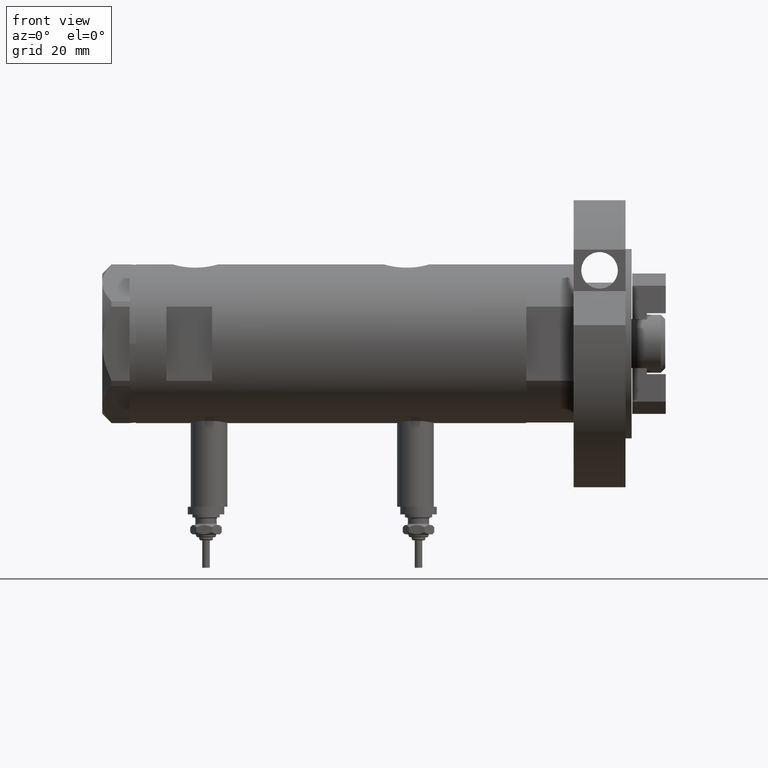
[diagram: clean part render]
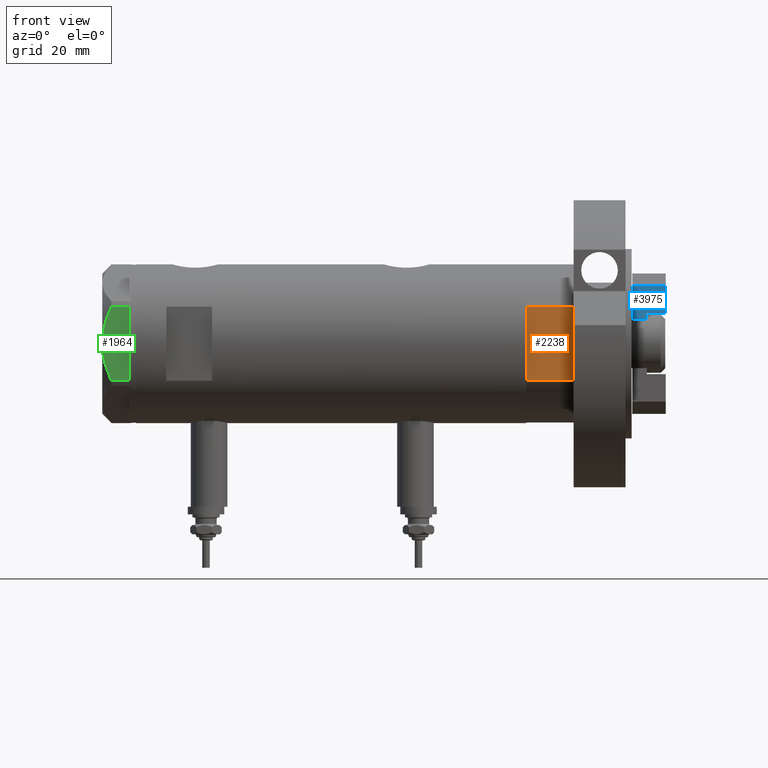
[diagram: same view with three faces highlighted in distinct colors, each labeled with its STEP entity id]
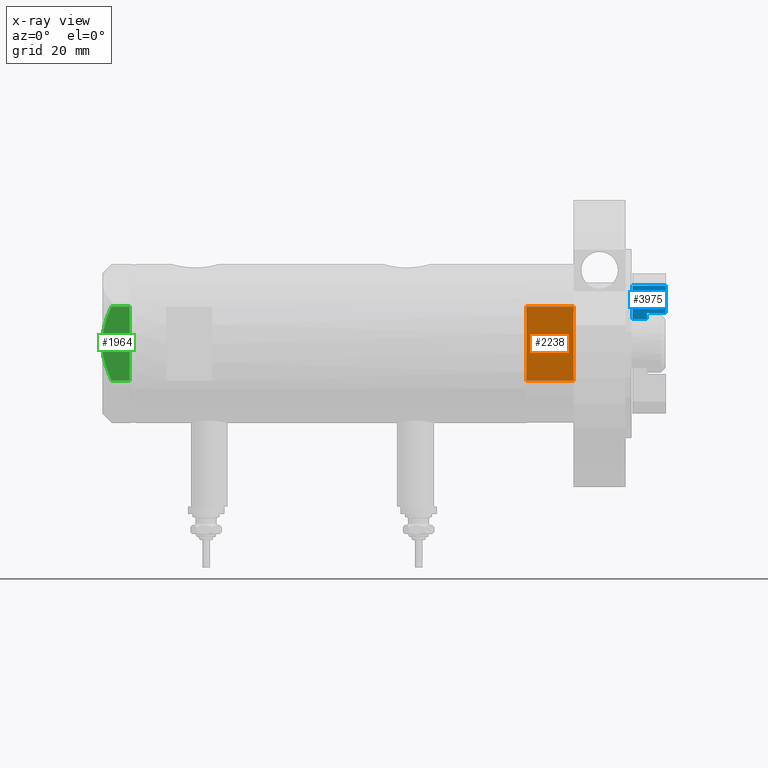
[diagram: x-ray of the same camera — body ghosted, the three highlighted faces saturated]
A machine part, front view with three faces highlighted in distinct colors.
The next image is the same camera in x-ray (body ghosted, the three faces saturated) — at least one of them is partly hidden behind the body in this view.
Their STEP definitions:

[orange] entity #2238 — the highlighted planar face has unit normal (-0, 1, 0).
#587 = VERTEX_POINT ( 'NONE', #5665 ) ;
#858 = AXIS2_PLACEMENT_3D ( 'NONE', #8174, #8258, #1419 ) ;
#1039 = VERTEX_POINT ( 'NONE', #3409 ) ;
#1092 = DIRECTION ( 'NONE',  ( -1.000000000000000000, -0.000000000000000000, -0.000000000000000000 ) ) ;
#1174 = ORIENTED_EDGE ( 'NONE', *, *, #4796, .T. ) ;
#1419 = DIRECTION ( 'NONE',  ( 0.000000000000000000, -0.000000000000000000, 1.000000000000000000 ) ) ;
#1583 = DIRECTION ( 'NONE',  ( -0.000000000000000000, -0.000000000000000000, 1.000000000000000000 ) ) ;
#1719 = LINE ( 'NONE', #2296, #2570 ) ;
#1886 = DIRECTION ( 'NONE',  ( -0.000000000000000000, -0.000000000000000000, 1.000000000000000000 ) ) ;
#2238 = ADVANCED_FACE ( 'NONE', ( #5504 ), #5412, .F. ) ;
#2296 = CARTESIAN_POINT ( 'NONE',  ( -12.12435565298215145, -22.99999999999999645, 15.50000000000000000 ) ) ;
#2570 = VECTOR ( 'NONE', #1092, 1000.000000000000000 ) ;
#2708 = EDGE_CURVE ( 'NONE', #2710, #1039, #2896, .T. ) ;
#2710 = VERTEX_POINT ( 'NONE', #2849 ) ;
#2752 = LINE ( 'NONE', #5282, #5413 ) ;
#2849 = CARTESIAN_POINT ( 'NONE',  ( -12.12435565298215501, -22.99999999999999645, 0.000000000000000000 ) ) ;
#2896 = LINE ( 'NONE', #4896, #8065 ) ;
#3364 = ORIENTED_EDGE ( 'NONE', *, *, #5466, .F. ) ;
#3396 = VERTEX_POINT ( 'NONE', #4261 ) ;
#3409 = CARTESIAN_POINT ( 'NONE',  ( -12.12435565298215323, -22.99999999999999645, 15.50000000000000000 ) ) ;
#3536 = CARTESIAN_POINT ( 'NONE',  ( -12.12435565298215145, -22.99999999999999645, 0.000000000000000000 ) ) ;
#3791 = EDGE_CURVE ( 'NONE', #3396, #587, #2752, .T. ) ;
#4177 = LINE ( 'NONE', #3536, #8499 ) ;
#4261 = CARTESIAN_POINT ( 'NONE',  ( 12.12435565298215323, -22.99999999999999645, 0.000000000000000000 ) ) ;
#4365 = ORIENTED_EDGE ( 'NONE', *, *, #3791, .T. ) ;
#4796 = EDGE_CURVE ( 'NONE', #587, #1039, #1719, .T. ) ;
#4896 = CARTESIAN_POINT ( 'NONE',  ( -12.12435565298215145, -22.99999999999999645, 0.000000000000000000 ) ) ;
#5107 = EDGE_LOOP ( 'NONE', ( #1174, #6735, #3364, #4365 ) ) ;
#5282 = CARTESIAN_POINT ( 'NONE',  ( 12.12435565298215323, -22.99999999999999645, 0.000000000000000000 ) ) ;
#5412 = PLANE ( 'NONE',  #858 ) ;
#5413 = VECTOR ( 'NONE', #1886, 1000.000000000000000 ) ;
#5466 = EDGE_CURVE ( 'NONE', #3396, #2710, #4177, .T. ) ;
#5504 = FACE_OUTER_BOUND ( 'NONE', #5107, .T. ) ;
#5665 = CARTESIAN_POINT ( 'NONE',  ( 12.12435565298215323, -22.99999999999999645, 15.50000000000000000 ) ) ;
#6735 = ORIENTED_EDGE ( 'NONE', *, *, #2708, .F. ) ;
#6863 = DIRECTION ( 'NONE',  ( -1.000000000000000000, -0.000000000000000000, -0.000000000000000000 ) ) ;
#8065 = VECTOR ( 'NONE', #1583, 1000.000000000000000 ) ;
#8174 = CARTESIAN_POINT ( 'NONE',  ( -12.12435565298215145, -22.99999999999999645, 0.000000000000000000 ) ) ;
#8258 = DIRECTION ( 'NONE',  ( -0.000000000000000000, 1.000000000000000000, 0.000000000000000000 ) ) ;
#8499 = VECTOR ( 'NONE', #6863, 1000.000000000000000 ) ;

[blue] entity #3975 — the highlighted planar face has unit normal (0, 1, -0).
#370 = CARTESIAN_POINT ( 'NONE',  ( 7.500000000000000000, -10.49999999999999822, 4.799999999999998934 ) ) ;
#426 = CARTESIAN_POINT ( 'NONE',  ( -3.500000000000002220, -10.49999999999999822, 11.00000000000000000 ) ) ;
#558 = EDGE_CURVE ( 'NONE', #4802, #2989, #2936, .T. ) ;
#567 = LINE ( 'NONE', #7279, #899 ) ;
#687 = CARTESIAN_POINT ( 'NONE',  ( -3.500000000000002220, -10.49999999999999822, 11.00000000000000000 ) ) ;
#716 = DIRECTION ( 'NONE',  ( -0.000000000000000000, -0.000000000000000000, -1.000000000000000000 ) ) ;
#732 = CARTESIAN_POINT ( 'NONE',  ( 5.499999999999999112, -10.49999999999999822, 11.00000000000000000 ) ) ;
#775 = DIRECTION ( 'NONE',  ( 1.000000000000000000, 0.000000000000000000, 0.000000000000000000 ) ) ;
#871 = VERTEX_POINT ( 'NONE', #1297 ) ;
#899 = VECTOR ( 'NONE', #3898, 1000.000000000000000 ) ;
#1297 = CARTESIAN_POINT ( 'NONE',  ( -3.500000000000002220, -10.49999999999999822, 0.000000000000000000 ) ) ;
#1347 = DIRECTION ( 'NONE',  ( -1.398970545142586541E-16, 0.000000000000000000, 1.000000000000000000 ) ) ;
#1389 = DIRECTION ( 'NONE',  ( 0.000000000000000000, 0.000000000000000000, -1.000000000000000000 ) ) ;
#1566 = PLANE ( 'NONE',  #5101 ) ;
#1636 = VERTEX_POINT ( 'NONE', #426 ) ;
#1660 = EDGE_CURVE ( 'NONE', #1636, #871, #8103, .T. ) ;
#1981 = CARTESIAN_POINT ( 'NONE',  ( 5.500000000000000000, -10.49999999999999822, 4.799999999999998934 ) ) ;
#2383 = DIRECTION ( 'NONE',  ( -1.000000000000000000, 0.000000000000000000, 0.000000000000000000 ) ) ;
#2864 = VECTOR ( 'NONE', #716, 1000.000000000000000 ) ;
#2936 = LINE ( 'NONE', #7729, #2950 ) ;
#2950 = VECTOR ( 'NONE', #2383, 1000.000000000000000 ) ;
#2989 = VERTEX_POINT ( 'NONE', #1981 ) ;
#3037 = ORIENTED_EDGE ( 'NONE', *, *, #4600, .T. ) ;
#3175 = EDGE_CURVE ( 'NONE', #2989, #6396, #8068, .T. ) ;
#3263 = CARTESIAN_POINT ( 'NONE',  ( 5.499999999999999112, -10.49999999999999822, 11.00000000000000178 ) ) ;
#3646 = CARTESIAN_POINT ( 'NONE',  ( -7.499999999999999112, -10.49999999999999822, 11.00000000000000000 ) ) ;
#3898 = DIRECTION ( 'NONE',  ( 1.000000000000000000, 0.000000000000000000, 0.000000000000000000 ) ) ;
#3899 = EDGE_LOOP ( 'NONE', ( #5108, #4328, #7133, #5834, #4848, #3037 ) ) ;
#3952 = VECTOR ( 'NONE', #1347, 1000.000000000000000 ) ;
#3975 = ADVANCED_FACE ( 'NONE', ( #4921 ), #1566, .F. ) ;
#4328 = ORIENTED_EDGE ( 'NONE', *, *, #558, .T. ) ;
#4600 = EDGE_CURVE ( 'NONE', #871, #5914, #6925, .T. ) ;
#4802 = VERTEX_POINT ( 'NONE', #370 ) ;
#4825 = CARTESIAN_POINT ( 'NONE',  ( -7.499999999999999112, -10.49999999999999822, 0.000000000000000000 ) ) ;
#4848 = ORIENTED_EDGE ( 'NONE', *, *, #1660, .T. ) ;
#4921 = FACE_OUTER_BOUND ( 'NONE', #3899, .T. ) ;
#5101 = AXIS2_PLACEMENT_3D ( 'NONE', #3646, #5271, #7119 ) ;
#5108 = ORIENTED_EDGE ( 'NONE', *, *, #6161, .F. ) ;
#5271 = DIRECTION ( 'NONE',  ( 0.000000000000000000, 1.000000000000000000, 0.000000000000000000 ) ) ;
#5621 = LINE ( 'NONE', #7440, #2864 ) ;
#5834 = ORIENTED_EDGE ( 'NONE', *, *, #6226, .F. ) ;
#5914 = VERTEX_POINT ( 'NONE', #7861 ) ;
#6161 = EDGE_CURVE ( 'NONE', #4802, #5914, #5621, .T. ) ;
#6226 = EDGE_CURVE ( 'NONE', #1636, #6396, #567, .T. ) ;
#6381 = VECTOR ( 'NONE', #1389, 1000.000000000000000 ) ;
#6396 = VERTEX_POINT ( 'NONE', #732 ) ;
#6925 = LINE ( 'NONE', #4825, #7791 ) ;
#7119 = DIRECTION ( 'NONE',  ( 0.000000000000000000, -0.000000000000000000, 1.000000000000000000 ) ) ;
#7133 = ORIENTED_EDGE ( 'NONE', *, *, #3175, .T. ) ;
#7279 = CARTESIAN_POINT ( 'NONE',  ( -7.499999999999999112, -10.49999999999999822, 11.00000000000000000 ) ) ;
#7440 = CARTESIAN_POINT ( 'NONE',  ( 7.500000000000000000, -10.49999999999999822, 11.00000000000000000 ) ) ;
#7729 = CARTESIAN_POINT ( 'NONE',  ( -7.499999999999999112, -10.49999999999999822, 4.799999999999998934 ) ) ;
#7791 = VECTOR ( 'NONE', #775, 1000.000000000000000 ) ;
#7861 = CARTESIAN_POINT ( 'NONE',  ( 7.500000000000000000, -10.49999999999999822, 0.000000000000000000 ) ) ;
#8068 = LINE ( 'NONE', #3263, #3952 ) ;
#8103 = LINE ( 'NONE', #687, #6381 ) ;

[green] entity #1964 — the highlighted planar face has unit normal (-0, 1, -0).
#145 = DIRECTION ( 'NONE',  ( 3.527173405730720141E-15, -1.000000000000000000, 0.000000000000000000 ) ) ;
#455 = B_SPLINE_CURVE_WITH_KNOTS ( 'NONE', 3,
 ( #2428, #2304, #5799, #5126, #1095, #6487, #4951, #7644, #6319, #5666 ),
 .UNSPECIFIED., .F., .F.,
 ( 4, 2, 2, 2, 4 ),
 ( 0.03516523594057416324, 0.03831677594541234300, 0.03989254594783143981, 0.04146831595025052969, 0.04777139595992690307 ),
 .UNSPECIFIED. ) ;
#498 = CARTESIAN_POINT ( 'NONE',  ( -22.99999999999999289, 12.15905619136133176, 0.000000000000000000 ) ) ;
#1061 = DIRECTION ( 'NONE',  ( -3.527173405730720141E-15, 1.000000000000000000, 0.000000000000000000 ) ) ;
#1095 = CARTESIAN_POINT ( 'NONE',  ( -22.99999999999998224, 8.246028007352361300, 7.571131808646907935 ) ) ;
#1110 = CARTESIAN_POINT ( 'NONE',  ( -22.99999999999999645, 13.27905619136132032, 0.000000000000000000 ) ) ;
#1132 = ORIENTED_EDGE ( 'NONE', *, *, #5045, .T. ) ;
#1169 = VECTOR ( 'NONE', #4336, 1000.000000000000000 ) ;
#1220 = CARTESIAN_POINT ( 'NONE',  ( -23.00000000000004619, -8.112498833180673323E-14, 9.000000000000000000 ) ) ;
#1532 = VERTEX_POINT ( 'NONE', #3937 ) ;
#1571 = VERTEX_POINT ( 'NONE', #4123 ) ;
#1575 = VECTOR ( 'NONE', #145, 1000.000000000000000 ) ;
#1688 = VERTEX_POINT ( 'NONE', #3344 ) ;
#1727 = ORIENTED_EDGE ( 'NONE', *, *, #2506, .F. ) ;
#1744 = LINE ( 'NONE', #3747, #1169 ) ;
#1804 = CARTESIAN_POINT ( 'NONE',  ( -22.99999999999993250, -4.203926054641964782, 8.641681223122507305 ) ) ;
#1830 = LINE ( 'NONE', #1110, #4981 ) ;
#1893 = CARTESIAN_POINT ( 'NONE',  ( -22.99999999999991118, -10.22738952213794761, 6.832470313674783746 ) ) ;
#1901 = LINE ( 'NONE', #4580, #8131 ) ;
#1964 = ADVANCED_FACE ( 'NONE', ( #3118 ), #5844, .F. ) ;
#2196 = CARTESIAN_POINT ( 'NONE',  ( -22.99999999999999645, 13.27905619136132032, 0.000000000000000000 ) ) ;
#2281 = VERTEX_POINT ( 'NONE', #7520 ) ;
#2304 = CARTESIAN_POINT ( 'NONE',  ( -22.99999999999998934, 11.20825071633916359, 6.428173306378450746 ) ) ;
#2428 = CARTESIAN_POINT ( 'NONE',  ( -22.99999999999999289, 12.15905619136133176, 5.983800287807616414 ) ) ;
#2456 = CARTESIAN_POINT ( 'NONE',  ( -22.99999999999992184, -7.253003311474388148, 7.903276810347638737 ) ) ;
#2506 = EDGE_CURVE ( 'NONE', #1571, #7673, #455, .T. ) ;
#2546 = CARTESIAN_POINT ( 'NONE',  ( -22.99999999999995026, -1.063773509315737442, 8.981438083606830602 ) ) ;
#2727 = CARTESIAN_POINT ( 'NONE',  ( -22.99999999999999289, 12.15905619136133176, 9.000000000000000000 ) ) ;
#2971 = CARTESIAN_POINT ( 'NONE',  ( -22.99999999999992895, -5.228918809624124364, 8.433337033849854336 ) ) ;
#3118 = FACE_OUTER_BOUND ( 'NONE', #8314, .T. ) ;
#3281 = EDGE_CURVE ( 'NONE', #1532, #1688, #6811, .T. ) ;
#3344 = CARTESIAN_POINT ( 'NONE',  ( -22.99999999999990763, -12.12435565298232021, 0.000000000000000000 ) ) ;
#3747 = CARTESIAN_POINT ( 'NONE',  ( -22.99999999999990763, -12.15905619136147386, 9.000000000000000000 ) ) ;
#3904 = DIRECTION ( 'NONE',  ( 3.527173405730720141E-15, -1.000000000000000000, 0.000000000000000000 ) ) ;
#3937 = CARTESIAN_POINT ( 'NONE',  ( -22.99999999999999289, 12.12435565298215856, 0.000000000000000000 ) ) ;
#4075 = B_SPLINE_CURVE_WITH_KNOTS ( 'NONE', 3,
 ( #1220, #8390, #2546, #5242, #7182, #1804, #2971, #2456, #6963, #7935, #1893, #4992, #4571, #5160 ),
 .UNSPECIFIED., .F., .F.,
 ( 4, 2, 2, 2, 2, 2, 4 ),
 ( 0.04777139595992690307, 0.04934380568070229761, 0.05091621540147769215, 0.05406103484302848122, 0.05720585428457927030, 0.05877826400535466483, 0.06035067372613005937 ),
 .UNSPECIFIED. ) ;
#4123 = CARTESIAN_POINT ( 'NONE',  ( -22.99999999999999289, 12.15905619136133176, 5.983800287807616414 ) ) ;
#4336 = DIRECTION ( 'NONE',  ( 0.000000000000000000, 0.000000000000000000, 1.000000000000000000 ) ) ;
#4362 = DIRECTION ( 'NONE',  ( 1.000000000000000000, 3.527173405730720141E-15, -0.000000000000000000 ) ) ;
#4571 = CARTESIAN_POINT ( 'NONE',  ( -22.99999999999990763, -11.68282849742335827, 6.206372352695425754 ) ) ;
#4580 = CARTESIAN_POINT ( 'NONE',  ( -22.99999999999999645, 13.27905619136132032, 0.000000000000000000 ) ) ;
#4951 = CARTESIAN_POINT ( 'NONE',  ( -22.99999999999997158, 6.734330413511419700, 8.039389741252668031 ) ) ;
#4981 = VECTOR ( 'NONE', #6557, 1000.000000000000000 ) ;
#4992 = CARTESIAN_POINT ( 'NONE',  ( -22.99999999999991118, -11.20155944044816287, 6.421102682632757741 ) ) ;
#5045 = EDGE_CURVE ( 'NONE', #7015, #2281, #1744, .T. ) ;
#5126 = CARTESIAN_POINT ( 'NONE',  ( -22.99999999999997513, 8.748091966971378142, 7.396818978284571244 ) ) ;
#5153 = EDGE_CURVE ( 'NONE', #6911, #1532, #1830, .T. ) ;
#5160 = CARTESIAN_POINT ( 'NONE',  ( -22.99999999999990763, -12.15905619136147564, 5.983800287807627072 ) ) ;
#5242 = CARTESIAN_POINT ( 'NONE',  ( -22.99999999999993960, -2.119709279061923191, 8.908535212173198659 ) ) ;
#5294 = VECTOR ( 'NONE', #7591, 1000.000000000000000 ) ;
#5400 = CARTESIAN_POINT ( 'NONE',  ( -23.00000000000004619, -8.112498833180673323E-14, 9.000000000000000000 ) ) ;
#5496 = ORIENTED_EDGE ( 'NONE', *, *, #3281, .T. ) ;
#5645 = ORIENTED_EDGE ( 'NONE', *, *, #6219, .F. ) ;
#5651 = AXIS2_PLACEMENT_3D ( 'NONE', #8513, #4362, #1061 ) ;
#5666 = CARTESIAN_POINT ( 'NONE',  ( -23.00000000000004619, -8.112498833180673323E-14, 9.000000000000000000 ) ) ;
#5723 = CARTESIAN_POINT ( 'NONE',  ( -22.99999999999990763, -12.15905619136147386, 0.000000000000000000 ) ) ;
#5799 = CARTESIAN_POINT ( 'NONE',  ( -22.99999999999998579, 10.23890159976122050, 6.840812428290914404 ) ) ;
#5844 = PLANE ( 'NONE',  #5651 ) ;
#6219 = EDGE_CURVE ( 'NONE', #7673, #2281, #4075, .T. ) ;
#6319 = CARTESIAN_POINT ( 'NONE',  ( -22.99999999999995381, 2.122900714018063795, 9.000000000000092371 ) ) ;
#6334 = ORIENTED_EDGE ( 'NONE', *, *, #5153, .T. ) ;
#6487 = CARTESIAN_POINT ( 'NONE',  ( -22.99999999999996803, 7.239756182922199024, 7.892186063422847120 ) ) ;
#6557 = DIRECTION ( 'NONE',  ( 3.527173405730720141E-15, -1.000000000000000000, 0.000000000000000000 ) ) ;
#6739 = LINE ( 'NONE', #2727, #5294 ) ;
#6811 = LINE ( 'NONE', #2196, #1575 ) ;
#6911 = VERTEX_POINT ( 'NONE', #498 ) ;
#6963 = CARTESIAN_POINT ( 'NONE',  ( -22.99999999999991829, -8.252113629125268801, 7.581642062680223226 ) ) ;
#6991 = EDGE_CURVE ( 'NONE', #1571, #6911, #6739, .T. ) ;
#7015 = VERTEX_POINT ( 'NONE', #5723 ) ;
#7182 = CARTESIAN_POINT ( 'NONE',  ( -22.99999999999993960, -2.643615312305158671, 8.854304560636265364 ) ) ;
#7307 = EDGE_CURVE ( 'NONE', #1688, #7015, #1901, .T. ) ;
#7397 = ORIENTED_EDGE ( 'NONE', *, *, #6991, .T. ) ;
#7520 = CARTESIAN_POINT ( 'NONE',  ( -22.99999999999990763, -12.15905619136147564, 5.983800287807627072 ) ) ;
#7591 = DIRECTION ( 'NONE',  ( 0.000000000000000000, 0.000000000000000000, -1.000000000000000000 ) ) ;
#7644 = CARTESIAN_POINT ( 'NONE',  ( -22.99999999999996803, 4.194757081058972936, 8.703000351525203016 ) ) ;
#7673 = VERTEX_POINT ( 'NONE', #5400 ) ;
#7933 = ORIENTED_EDGE ( 'NONE', *, *, #7307, .T. ) ;
#7935 = CARTESIAN_POINT ( 'NONE',  ( -22.99999999999991829, -9.734726261263297431, 7.028924700095662281 ) ) ;
#8131 = VECTOR ( 'NONE', #3904, 1000.000000000000000 ) ;
#8314 = EDGE_LOOP ( 'NONE', ( #1727, #7397, #6334, #5496, #7933, #1132, #5645 ) ) ;
#8390 = CARTESIAN_POINT ( 'NONE',  ( -22.99999999999995737, -0.5295934231897764244, 9.000000000000092371 ) ) ;
#8513 = CARTESIAN_POINT ( 'NONE',  ( -22.99999999999999645, 13.27905619136132032, 9.000000000000000000 ) ) ;